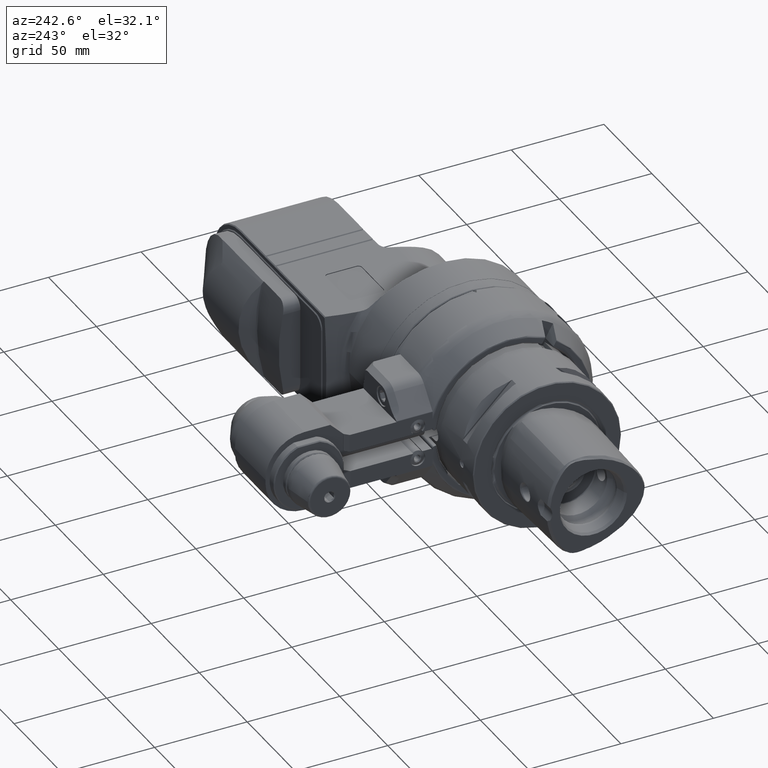
[diagram: clean part render]
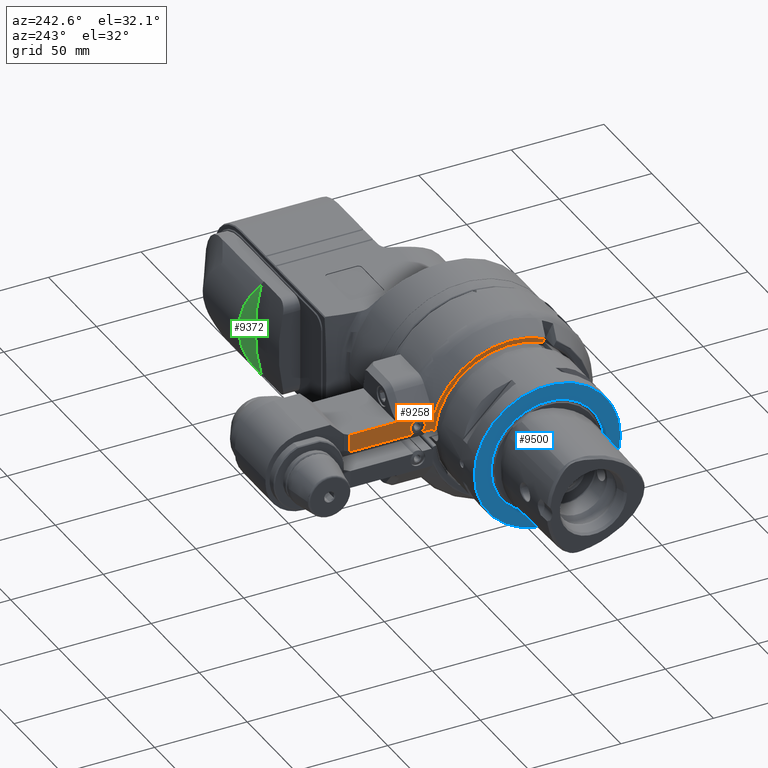
[diagram: same view with three faces highlighted in distinct colors, each labeled with its STEP entity id]
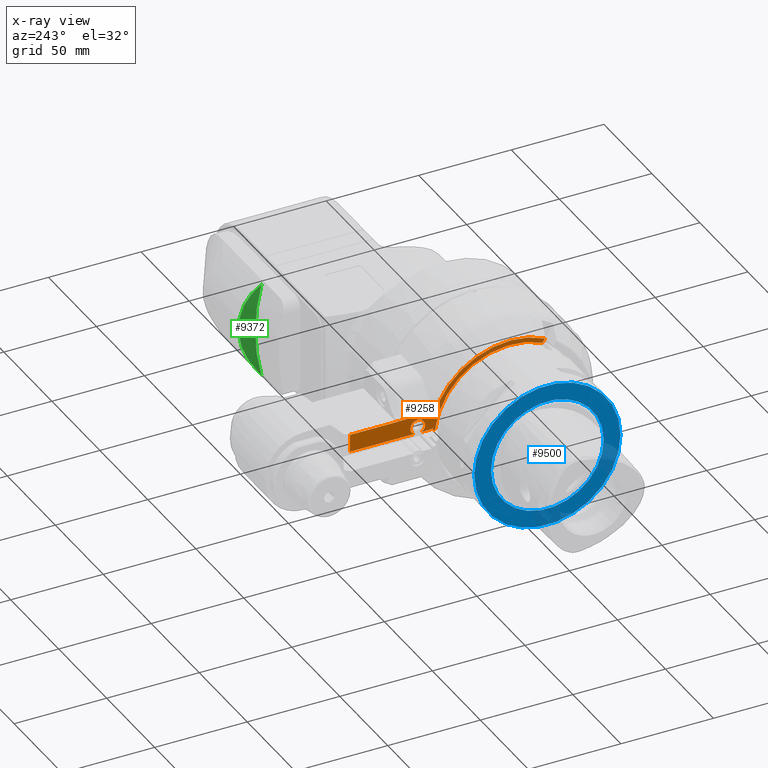
[diagram: x-ray of the same camera — body ghosted, the three highlighted faces saturated]
A machine part, auxiliary view with three faces highlighted in distinct colors.
The next image is the same camera in x-ray (body ghosted, the three faces saturated) — at least one of them is partly hidden behind the body in this view.
Their STEP definitions:

[orange] entity #9258 — the highlighted planar face has unit normal (-1, 0, 0).
#510=LINE('',#14211,#1181);
#578=LINE('',#15074,#1249);
#580=LINE('',#15077,#1251);
#581=LINE('',#15081,#1252);
#582=LINE('',#15085,#1253);
#583=LINE('',#15089,#1254);
#584=LINE('',#15093,#1255);
#585=LINE('',#15095,#1256);
#586=LINE('',#15096,#1257);
#587=LINE('',#15098,#1258);
#588=LINE('',#15102,#1259);
#589=LINE('',#15104,#1260);
#1181=VECTOR('',#11191,25.26);
#1249=VECTOR('',#11459,34.26);
#1251=VECTOR('',#11463,9.5);
#1252=VECTOR('',#11466,1.);
#1253=VECTOR('',#11469,0.247699451442);
#1254=VECTOR('',#11472,2.43090617210213);
#1255=VECTOR('',#11475,4.088942069421);
#1256=VECTOR('',#11476,19.5);
#1257=VECTOR('',#11477,0.1128483482606);
#1258=VECTOR('',#11478,0.3775010008008);
#1259=VECTOR('',#11481,0.3775010008008);
#1260=VECTOR('',#11482,4.5);
#2097=FACE_OUTER_BOUND('',#2691,.T.);
#2691=EDGE_LOOP('',(#6610,#6611,#6612,#6613,#6614,#6615,#6616,#6617,#6618,
#6619,#6620,#6621,#6622,#6623,#6624,#6625,#6626));
#3341=CIRCLE('',#9994,1.);
#3342=CIRCLE('',#9995,41.);
#3343=CIRCLE('',#9996,43.42264973081);
#3344=CIRCLE('',#9997,4.);
#3345=CIRCLE('',#9998,1.);
#3849=VERTEX_POINT('',#14208);
#3850=VERTEX_POINT('',#14210);
#3947=VERTEX_POINT('',#15071);
#3948=VERTEX_POINT('',#15073);
#3949=VERTEX_POINT('',#15079);
#3950=VERTEX_POINT('',#15080);
#3951=VERTEX_POINT('',#15082);
#3952=VERTEX_POINT('',#15084);
#3953=VERTEX_POINT('',#15086);
#3954=VERTEX_POINT('',#15088);
#3955=VERTEX_POINT('',#15090);
#3956=VERTEX_POINT('',#15092);
#3957=VERTEX_POINT('',#15094);
#3958=VERTEX_POINT('',#15097);
#3959=VERTEX_POINT('',#15099);
#3960=VERTEX_POINT('',#15101);
#3961=VERTEX_POINT('',#15103);
#4806=EDGE_CURVE('',#3850,#3849,#510,.T.);
#4953=EDGE_CURVE('',#3948,#3947,#578,.T.);
#4955=EDGE_CURVE('',#3948,#3849,#580,.T.);
#4956=EDGE_CURVE('',#3949,#3950,#581,.T.);
#4957=EDGE_CURVE('',#3950,#3951,#3341,.T.);
#4958=EDGE_CURVE('',#3952,#3951,#582,.T.);
#4959=EDGE_CURVE('',#3952,#3953,#3342,.T.);
#4960=EDGE_CURVE('',#3953,#3954,#583,.T.);
#4961=EDGE_CURVE('',#3954,#3955,#3343,.T.);
#4962=EDGE_CURVE('',#3955,#3956,#584,.T.);
#4963=EDGE_CURVE('',#3957,#3956,#585,.T.);
#4964=EDGE_CURVE('',#3957,#3850,#586,.T.);
#4965=EDGE_CURVE('',#3958,#3947,#587,.T.);
#4966=EDGE_CURVE('',#3958,#3959,#3344,.T.);
#4967=EDGE_CURVE('',#3960,#3959,#588,.T.);
#4968=EDGE_CURVE('',#3960,#3961,#589,.T.);
#4969=EDGE_CURVE('',#3961,#3949,#3345,.T.);
#6610=ORIENTED_EDGE('',*,*,#4956,.T.);
#6611=ORIENTED_EDGE('',*,*,#4957,.T.);
#6612=ORIENTED_EDGE('',*,*,#4958,.F.);
#6613=ORIENTED_EDGE('',*,*,#4959,.T.);
#6614=ORIENTED_EDGE('',*,*,#4960,.T.);
#6615=ORIENTED_EDGE('',*,*,#4961,.T.);
#6616=ORIENTED_EDGE('',*,*,#4962,.T.);
#6617=ORIENTED_EDGE('',*,*,#4963,.F.);
#6618=ORIENTED_EDGE('',*,*,#4964,.T.);
#6619=ORIENTED_EDGE('',*,*,#4806,.T.);
#6620=ORIENTED_EDGE('',*,*,#4955,.F.);
#6621=ORIENTED_EDGE('',*,*,#4953,.T.);
#6622=ORIENTED_EDGE('',*,*,#4965,.F.);
#6623=ORIENTED_EDGE('',*,*,#4966,.T.);
#6624=ORIENTED_EDGE('',*,*,#4967,.F.);
#6625=ORIENTED_EDGE('',*,*,#4968,.T.);
#6626=ORIENTED_EDGE('',*,*,#4969,.T.);
#8924=PLANE('',#9993);
#9258=ADVANCED_FACE('',(#2097),#8924,.T.);
#9993=AXIS2_PLACEMENT_3D('',#15078,#11464,#11465);
#9994=AXIS2_PLACEMENT_3D('',#15083,#11467,#11468);
#9995=AXIS2_PLACEMENT_3D('',#15087,#11470,#11471);
#9996=AXIS2_PLACEMENT_3D('',#15091,#11473,#11474);
#9997=AXIS2_PLACEMENT_3D('',#15100,#11479,#11480);
#9998=AXIS2_PLACEMENT_3D('',#15105,#11483,#11484);
#11191=DIRECTION('',(1.912783294999E-14,1.,0.));
#11459=DIRECTION('',(-1.659177433182E-14,-1.,0.));
#11463=DIRECTION('',(0.,0.,1.));
#11464=DIRECTION('center_axis',(-1.,0.,0.));
#11465=DIRECTION('ref_axis',(0.,-1.,0.));
#11466=DIRECTION('',(0.,0.,-1.));
#11467=DIRECTION('center_axis',(-1.,0.,0.));
#11468=DIRECTION('ref_axis',(0.,1.,0.));
#11469=DIRECTION('',(-2.294854450823E-13,1.,-3.585710079411E-14));
#11470=DIRECTION('center_axis',(1.,0.,0.));
#11471=DIRECTION('ref_axis',(0.,0.993958549964826,0.109756097561003));
#11472=DIRECTION('',(0.,-0.500000000012273,0.866025403777353));
#11473=DIRECTION('center_axis',(-1.,0.,0.));
#11474=DIRECTION('ref_axis',(0.,-0.428568809891686,0.90350914504947));
#11475=DIRECTION('',(0.,0.,1.));
#11476=DIRECTION('',(0.,-1.,0.));
#11477=DIRECTION('',(4.785293604215E-12,0.,-1.));
#11478=DIRECTION('',(1.58107103497E-12,0.,-1.));
#11479=DIRECTION('center_axis',(1.,0.,0.));
#11480=DIRECTION('ref_axis',(0.,0.625,-0.7806247497998));
#11481=DIRECTION('',(-1.505781938067E-12,0.,1.));
#11482=DIRECTION('',(0.,-1.,0.));
#11483=DIRECTION('center_axis',(-1.,0.,0.));
#11484=DIRECTION('ref_axis',(0.,0.,-1.));
#14208=CARTESIAN_POINT('',(-165.5,86.76,15.));
#14210=CARTESIAN_POINT('',(-165.5,61.5,15.));
#14211=CARTESIAN_POINT('',(-165.5,61.5,15.));
#15071=CARTESIAN_POINT('',(-165.5,52.5,5.5));
#15073=CARTESIAN_POINT('',(-165.5,86.76,5.5));
#15074=CARTESIAN_POINT('',(-165.5,86.76,5.5));
#15077=CARTESIAN_POINT('',(-165.5,86.76,5.5));
#15078=CARTESIAN_POINT('Origin',(-165.5,-40.75,0.));
#15079=CARTESIAN_POINT('',(-165.5,42.,6.5));
#15080=CARTESIAN_POINT('',(-165.5,42.,5.5));
#15081=CARTESIAN_POINT('',(-165.5,42.,6.5));
#15082=CARTESIAN_POINT('',(-165.5,41.,4.5));
#15083=CARTESIAN_POINT('Origin',(-165.5,41.,5.5));
#15084=CARTESIAN_POINT('',(-165.5,40.75230054856,4.5));
#15085=CARTESIAN_POINT('',(-165.5,40.75230054856,4.5));
#15086=CARTESIAN_POINT('',(-165.5,-17.39407938471,37.12742924521));
#15087=CARTESIAN_POINT('Origin',(-165.5,0.,0.));
#15088=CARTESIAN_POINT('',(-165.499999999988,-18.6095932938698,39.2327610999538));
#15089=CARTESIAN_POINT('',(-165.5,-17.39407938471,37.12742924521));
#15090=CARTESIAN_POINT('',(-165.5,42.,11.02390627884));
#15091=CARTESIAN_POINT('Origin',(-165.5,0.,0.));
#15092=CARTESIAN_POINT('',(-165.5,42.,15.11284834826));
#15093=CARTESIAN_POINT('',(-165.5,42.,11.02390627884));
#15094=CARTESIAN_POINT('',(-165.5,61.5,15.11284834826));
#15095=CARTESIAN_POINT('',(-165.5,61.5,15.11284834826));
#15096=CARTESIAN_POINT('',(-165.5,61.5,15.11284834826));
#15097=CARTESIAN_POINT('',(-165.5,52.5,5.877501000801));
#15098=CARTESIAN_POINT('',(-165.5,52.5,5.877501000801));
#15099=CARTESIAN_POINT('',(-165.5,47.5,5.877501000801));
#15100=CARTESIAN_POINT('Origin',(-165.5,50.,9.));
#15101=CARTESIAN_POINT('',(-165.5,47.5,5.5));
#15102=CARTESIAN_POINT('',(-165.5,47.5,5.5));
#15103=CARTESIAN_POINT('',(-165.5,43.,5.5));
#15104=CARTESIAN_POINT('',(-165.5,47.5,5.5));
#15105=CARTESIAN_POINT('Origin',(-165.5,43.,6.5));

[blue] entity #9500 — the highlighted planar face has unit normal (-1, 0, 0).
#1966=FACE_BOUND('',#2971,.T.);
#2339=FACE_OUTER_BOUND('',#2970,.T.);
#2970=EDGE_LOOP('',(#7871));
#2971=EDGE_LOOP('',(#7872));
#3582=CIRCLE('',#10501,39.5);
#3583=CIRCLE('',#10503,30.41421356237);
#4370=VERTEX_POINT('',#17223);
#4371=VERTEX_POINT('',#17227);
#5605=EDGE_CURVE('',#4370,#4370,#3582,.T.);
#5606=EDGE_CURVE('',#4371,#4371,#3583,.T.);
#7871=ORIENTED_EDGE('',*,*,#5605,.T.);
#7872=ORIENTED_EDGE('',*,*,#5606,.T.);
#9036=PLANE('',#10502);
#9500=ADVANCED_FACE('',(#2339,#1966),#9036,.T.);
#10501=AXIS2_PLACEMENT_3D('',#17225,#12785,#12786);
#10502=AXIS2_PLACEMENT_3D('',#17226,#12787,#12788);
#10503=AXIS2_PLACEMENT_3D('',#17228,#12789,#12790);
#12785=DIRECTION('center_axis',(-1.,0.,0.));
#12786=DIRECTION('ref_axis',(0.,-1.,0.));
#12787=DIRECTION('center_axis',(-1.,0.,0.));
#12788=DIRECTION('ref_axis',(0.,1.,0.));
#12789=DIRECTION('center_axis',(1.,0.,0.));
#12790=DIRECTION('ref_axis',(0.,1.,0.));
#17223=CARTESIAN_POINT('',(-204.,39.5,0.));
#17225=CARTESIAN_POINT('Origin',(-204.,0.,0.));
#17226=CARTESIAN_POINT('Origin',(-204.,0.,0.));
#17227=CARTESIAN_POINT('',(-204.,-30.41421356237,0.));
#17228=CARTESIAN_POINT('Origin',(-204.,0.,0.));

[green] entity #9372 — the highlighted conical surface has half-angle 45 deg.
#136=B_SPLINE_CURVE_WITH_KNOTS('',3,(#16232,#16233,#16234,#16235,#16236,
#16237,#16238,#16239,#16240,#16241,#16242,#16243,#16244,#16245,#16246,#16247,
#16248,#16249,#16250,#16251,#16252,#16253),.UNSPECIFIED.,.F.,.F.,(4,2,2,
2,2,2,2,2,2,2,4),(2.1263780289136,2.65267105689299,3.20723779839183,3.76180453989067,
4.31637128138951,4.87093802288835,5.42550476438719,5.98007150588603,6.53463824738487,
7.08920498888371,7.61549801685027),.UNSPECIFIED.);
#329=CONICAL_SURFACE('',#10224,104.,0.785398163397448);
#2211=FACE_OUTER_BOUND('',#2819,.T.);
#2819=EDGE_LOOP('',(#7236,#7237));
#3443=CIRCLE('',#10210,101.);
#4150=VERTEX_POINT('',#16229);
#4151=VERTEX_POINT('',#16231);
#5260=EDGE_CURVE('',#4151,#4150,#136,.F.);
#5269=EDGE_CURVE('',#4151,#4150,#3443,.T.);
#7236=ORIENTED_EDGE('',*,*,#5269,.F.);
#7237=ORIENTED_EDGE('',*,*,#5260,.T.);
#9372=ADVANCED_FACE('',(#2211),#329,.T.);
#10210=AXIS2_PLACEMENT_3D('',#16269,#12051,#12052);
#10224=AXIS2_PLACEMENT_3D('',#16319,#12089,#12090);
#12051=DIRECTION('center_axis',(-1.,0.,0.));
#12052=DIRECTION('ref_axis',(0.,0.967193734298567,0.254039918779691));
#12089=DIRECTION('center_axis',(1.,0.,0.));
#12090=DIRECTION('ref_axis',(0.,1.,-5.81879329583497E-13));
#16229=CARTESIAN_POINT('',(-40.5,69.68656716403,-25.65803179684));
#16231=CARTESIAN_POINT('',(-40.5,69.68656716415,25.65803179675));
#16232=CARTESIAN_POINT('Ctrl Pts',(-40.5000000000842,69.6865671640521,-25.6580317968101));
#16233=CARTESIAN_POINT('Ctrl Pts',(-39.7805961066877,70.7710416899176,-24.3610188131481));
#16234=CARTESIAN_POINT('Ctrl Pts',(-39.1267688557372,71.768208789152,-22.9996438990602));
#16235=CARTESIAN_POINT('Ctrl Pts',(-37.9319380085313,73.6042361419688,-20.1392198942798));
#16236=CARTESIAN_POINT('Ctrl Pts',(-37.355018565484,74.4993938425121,-18.5299704327926));
#16237=CARTESIAN_POINT('Ctrl Pts',(-36.3383906349042,76.087355978966,-15.1028074833141));
#16238=CARTESIAN_POINT('Ctrl Pts',(-35.8986643778306,76.7799845861317,-13.2848177996116));
#16239=CARTESIAN_POINT('Ctrl Pts',(-35.1939667515053,77.8943922112106,-9.54148156623352));
#16240=CARTESIAN_POINT('Ctrl Pts',(-34.9285560837867,78.3167355011833,-7.61377205323288));
#16241=CARTESIAN_POINT('Ctrl Pts',(-34.5815619771257,78.8695693136135,-3.76731444051172));
#16242=CARTESIAN_POINT('Ctrl Pts',(-34.5,79.,-1.84855580499614));
#16243=CARTESIAN_POINT('Ctrl Pts',(-34.5,79.,1.84855580499613));
#16244=CARTESIAN_POINT('Ctrl Pts',(-34.5815619771257,78.8695693136135,3.76731444051168));
#16245=CARTESIAN_POINT('Ctrl Pts',(-34.9285560837867,78.3167355011833,7.61377205323284));
#16246=CARTESIAN_POINT('Ctrl Pts',(-35.1939667515053,77.8943922112106,9.54148156623352));
#16247=CARTESIAN_POINT('Ctrl Pts',(-35.8986643778306,76.7799845861317,13.2848177996116));
#16248=CARTESIAN_POINT('Ctrl Pts',(-36.3383906349042,76.087355978966,15.1028074833141));
#16249=CARTESIAN_POINT('Ctrl Pts',(-37.355018565484,74.4993938425121,18.5299704327926));
#16250=CARTESIAN_POINT('Ctrl Pts',(-37.9319380085313,73.6042361419688,20.1392198942798));
#16251=CARTESIAN_POINT('Ctrl Pts',(-39.126768855723,71.7682087891738,22.9996438990262));
#16252=CARTESIAN_POINT('Ctrl Pts',(-39.7805961066558,70.7710416899663,24.3610188130818));
#16253=CARTESIAN_POINT('Ctrl Pts',(-40.5000000000316,69.6865671641315,25.6580317967152));
#16269=CARTESIAN_POINT('Origin',(-40.5,-28.,0.));
#16319=CARTESIAN_POINT('Origin',(-37.5,-28.,0.));